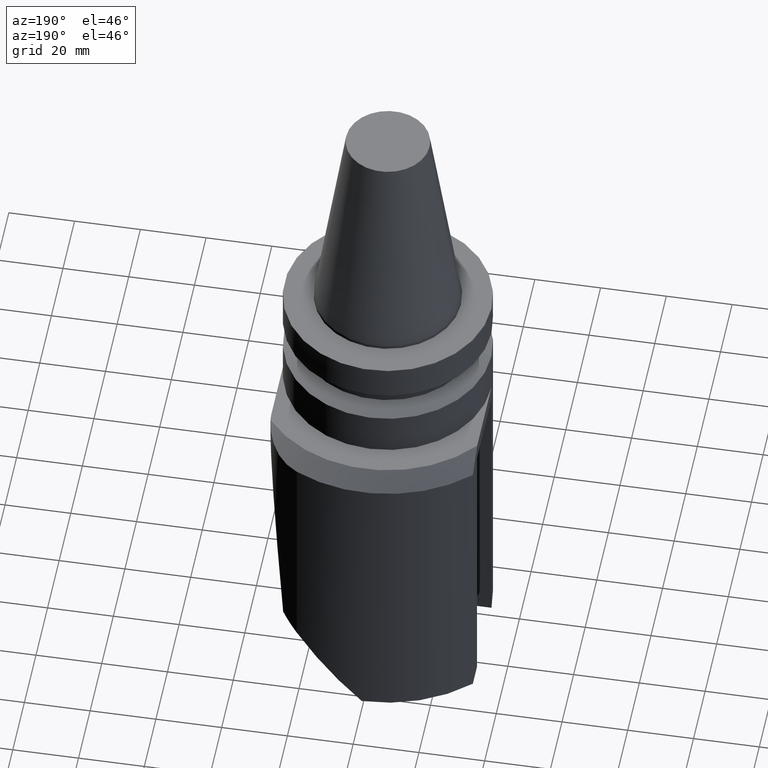
[diagram: clean part render]
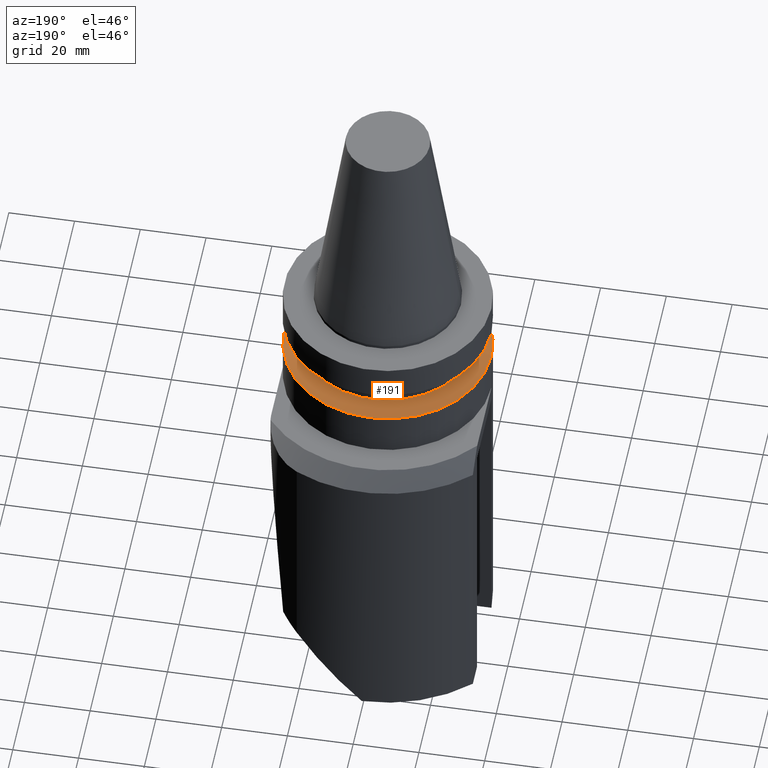
[diagram: same view with one face highlighted and labeled with its STEP entity id]
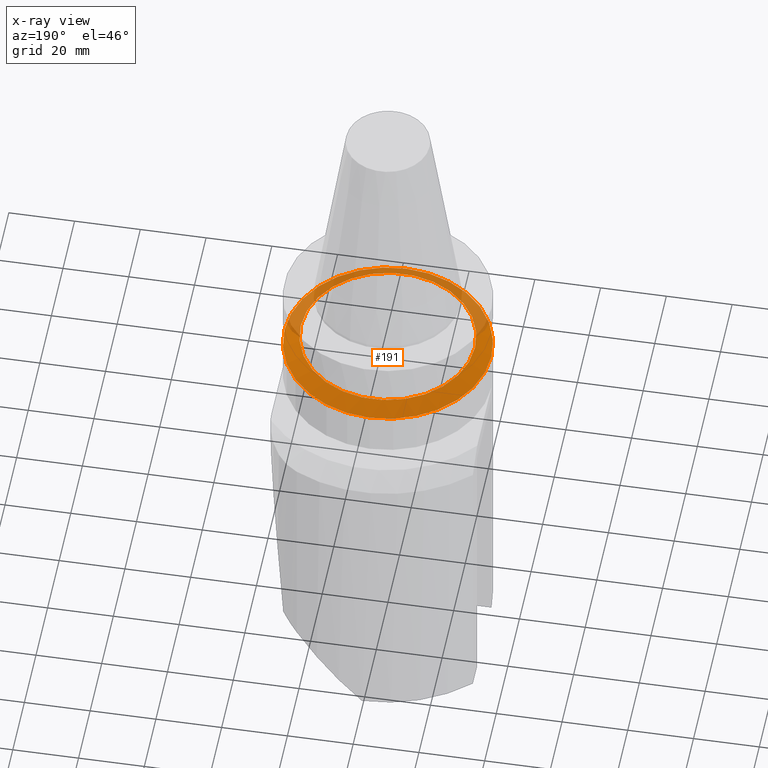
[diagram: x-ray of the same camera — body ghosted, the highlighted face saturated]
A machine part, auxiliary view. The second image highlights one B-rep face of the part: STEP entity #191.
The next image is the same camera in x-ray: the body ghosted, the highlighted face saturated — about 28% of this face is hidden behind the body in this view.
In plain terms, the highlighted conical surface has half-angle 60 deg.
Its self-contained STEP definition (entity closure, byte-faithful):
#169=EDGE_CURVE('240[2]',#365,#365,#366,.T.);
#191=ADVANCED_FACE('240[2]',(#397,#398),#399,.T.);
#206=EDGE_CURVE('240[2]',#418,#418,#419,.T.);
#365=VERTEX_POINT('',#636);
#366=CIRCLE('',#637,31.5);
#397=FACE_BOUND('',#677,.T.);
#398=FACE_BOUND('',#678,.T.);
#399=CONICAL_SURFACE('',#679,29.0,1.04719755058882);
#418=VERTEX_POINT('',#706);
#419=CIRCLE('',#707,26.5);
#636=CARTESIAN_POINT('',(31.5000000001728,4.46383758291774E-015,-21.6000000000998));
#637=AXIS2_PLACEMENT_3D('',#886,#887,#888);
#677=EDGE_LOOP('',(#931));
#678=EDGE_LOOP('',(#932));
#679=AXIS2_PLACEMENT_3D('',#933,#934,#935);
#706=CARTESIAN_POINT('',(-26.5,-6.01382702965428E-015,-18.71324865));
#707=AXIS2_PLACEMENT_3D('',#954,#955,#956);
#886=CARTESIAN_POINT('',(-2.64523708615828E-015,-1.32261854307914E-015,-21.6));
#887=DIRECTION('',(0.0,0.0,1.0));
#888=DIRECTION('',(-1.0,0.0,0.0));
#931=ORIENTED_EDGE('',*,*,#169,.T.);
#932=ORIENTED_EDGE('',*,*,#206,.F.);
#933=CARTESIAN_POINT('',(-2.46847454612269E-015,-1.23423727306135E-015,-20.156624325));
#934=DIRECTION('',(-0.0,-0.0,-1.0));
#935=DIRECTION('',(-1.0,0.0,0.0));
#954=CARTESIAN_POINT('',(-2.2917120060871E-015,-1.14585600304355E-015,-18.71324865));
#955=DIRECTION('',(0.0,0.0,1.0));
#956=DIRECTION('',(-1.0,0.0,0.0));